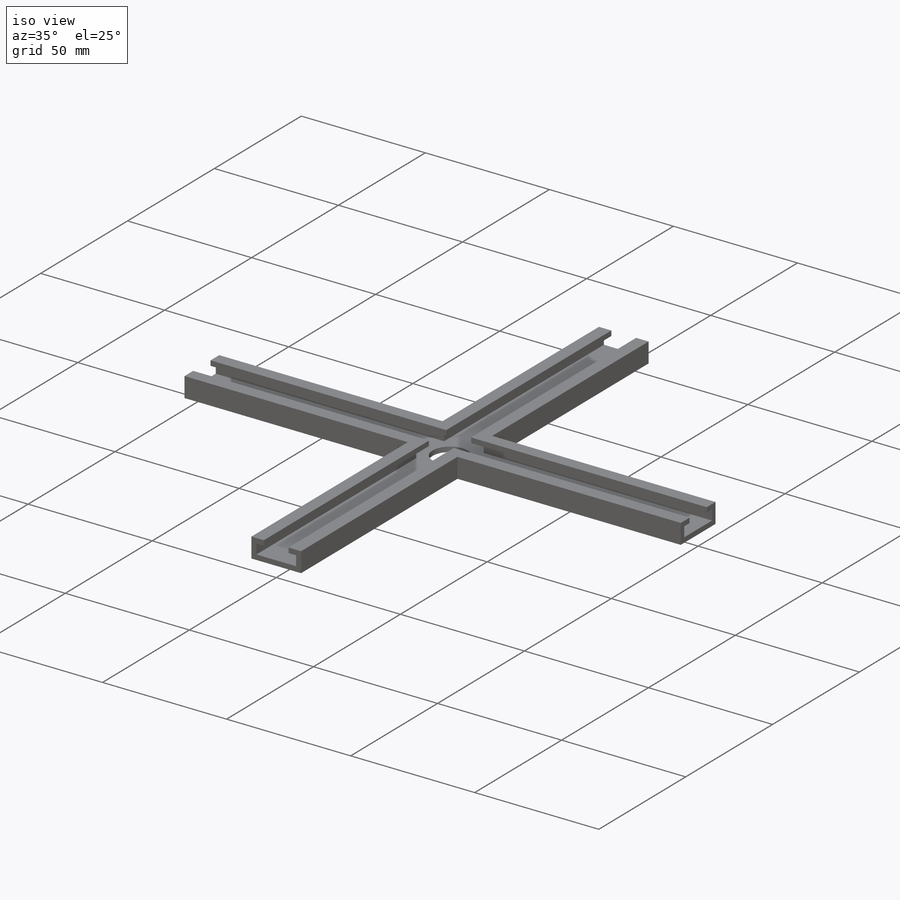
[diagram: iso view]
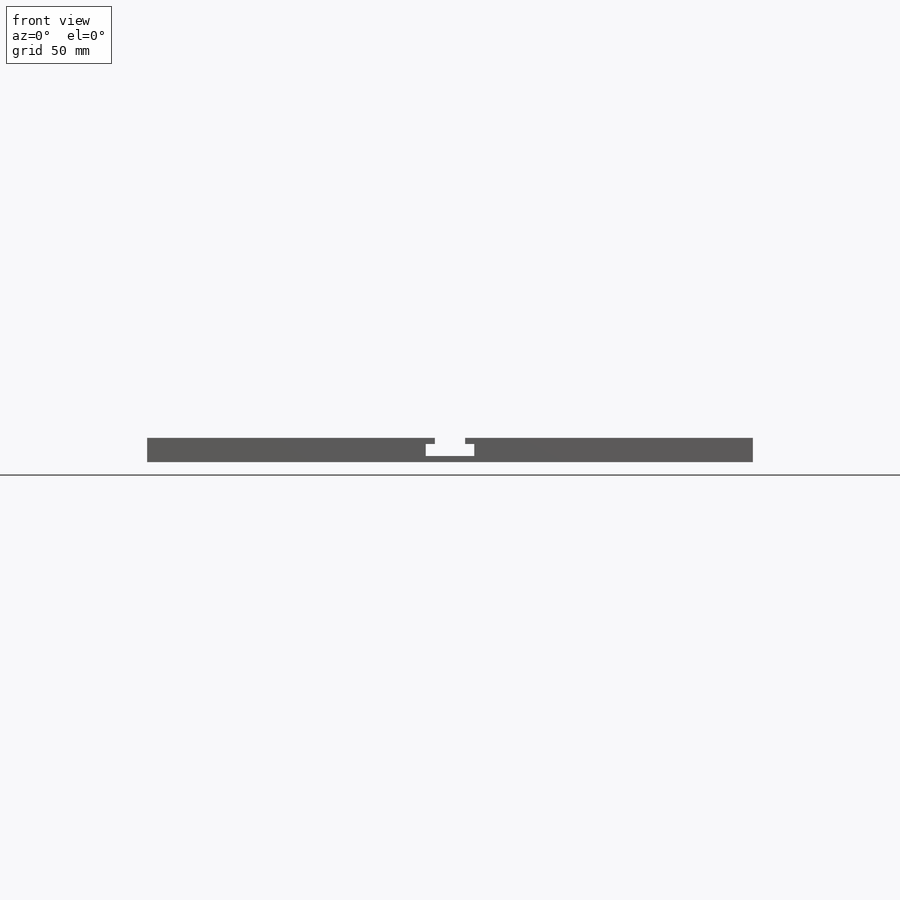
[diagram: front view]
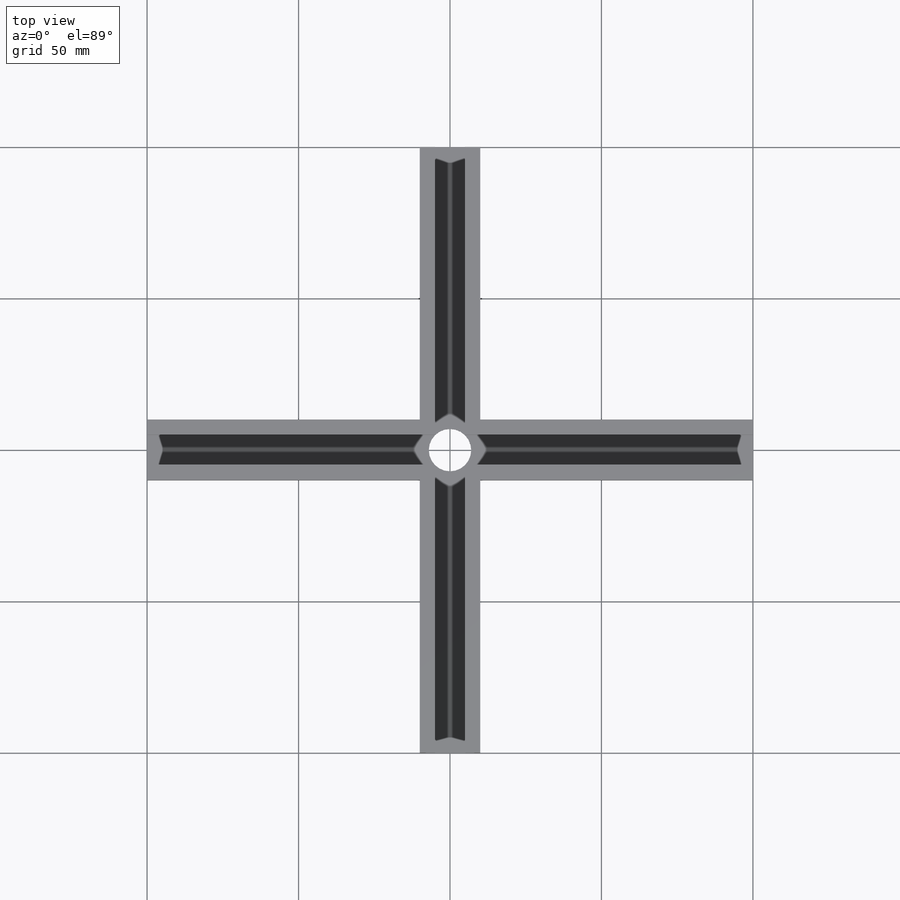
[diagram: top view]
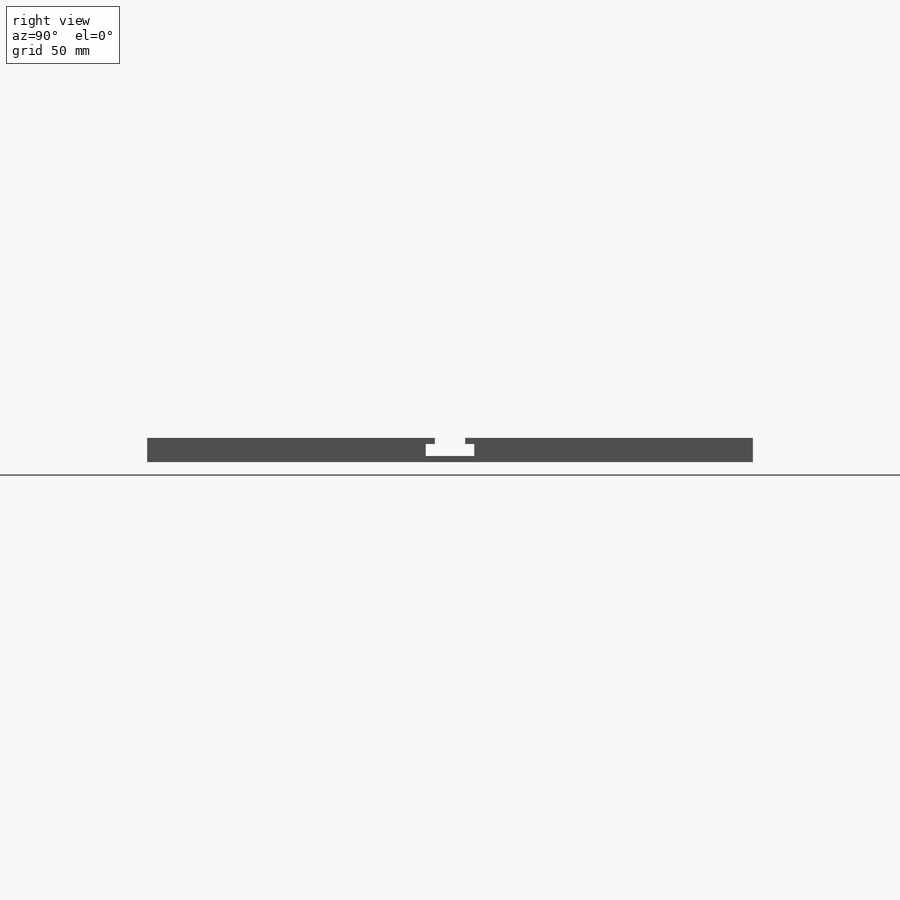
[diagram: right view]
SOLIDWORKS PART (.sldprt)
format: sldprt  version: not decoded by parser v0  size: 228,864 bytes
history: native  units: mm
features: sketch x5, plane x3, cut_extrude x3, extrude x2, material x1 (+13 scaffold rows collapsed)
feature tree (27):
  scaffold x13  (default folders/planes/origin — collapsed)
  material  "材质 <未指定>"
  plane  "前视基准面"
  plane  "上视基准面"
  plane  "右视基准面"
  sketch  "草图1"  dims[c1.D1=10.0mm c1.D2=8.0mm c1.D3=5.0mm c1.D4=2.0mm c1.D5=10.0mm c2.D4=2.0mm]
  extrude  "凸台-拉伸1"  Depth=200mm
  sketch  "草图2"  dims[D1=10.0mm D2=8.0mm D3=5.0mm D4=2.0mm]
  extrude  "凸台-拉伸2"  Depth=200mm
  sketch  "草图3"  dims[D1=0.0mm]
  cut_extrude  "切除-拉伸1"  Depth=200mm
  sketch  "草图4"
  cut_extrude  "切除-拉伸2"  Depth=200mm
  sketch  "草图5"  dims[D1=5.0mm]
  cut_extrude  "切除-拉伸3"  Depth=15mm
decode coverage: 9 of 10 modeling features carry decoded parameters
note: suppression state not decoded; provenance and decode notes live in map.json
